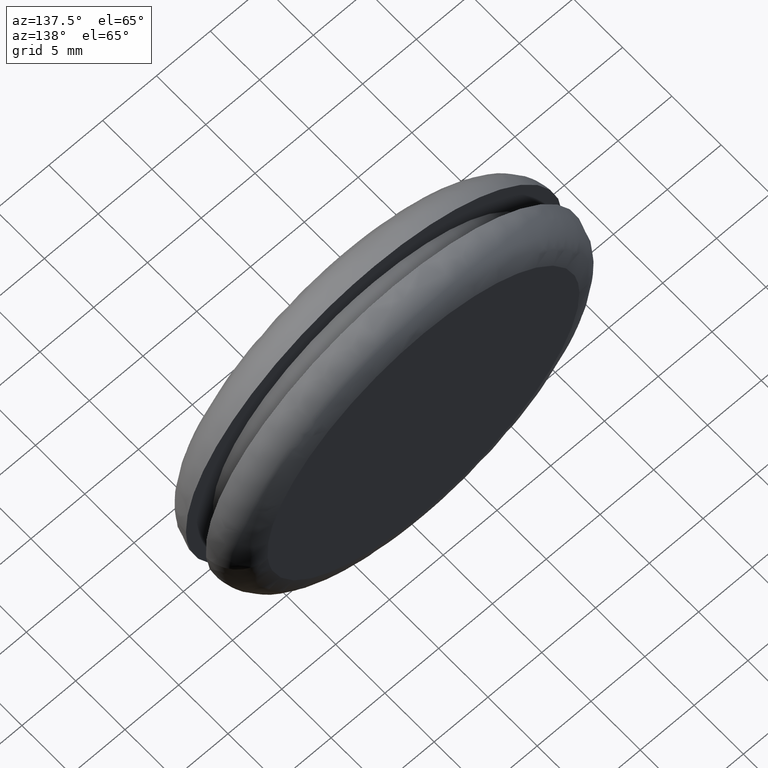
[diagram: clean part render]
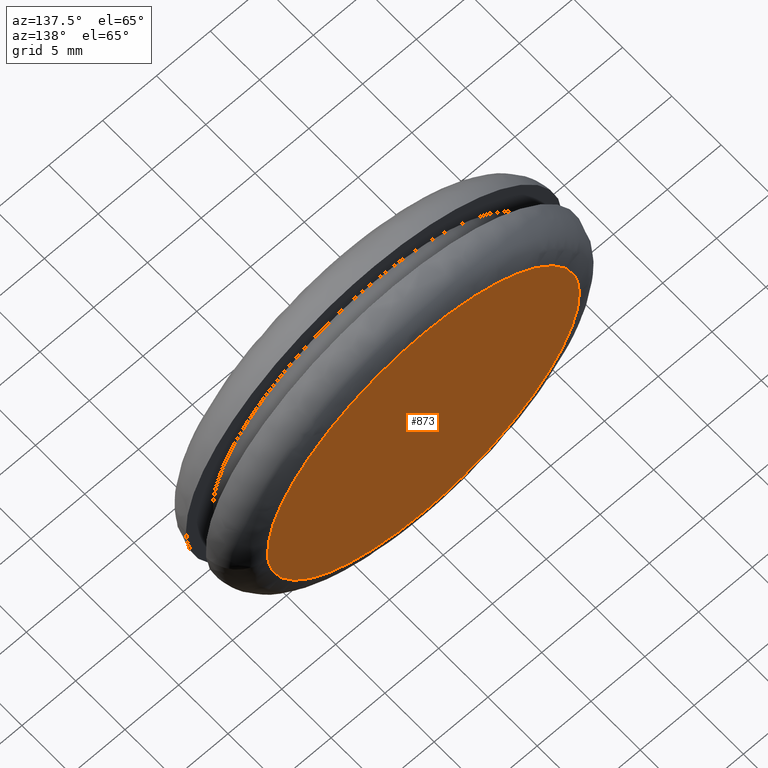
[diagram: same view with one face highlighted and labeled with its STEP entity id]
A machine part, auxiliary view. The second image highlights one B-rep face of the part: STEP entity #873.
In plain terms, the highlighted face is a freeform B-spline surface patch.
Its self-contained STEP definition (entity closure, byte-faithful):
#464=CARTESIAN_POINT('',(14.464702271190101,7.999999999999977,-1.011132147919218));
#465=VERTEX_POINT('',#464);
#479=CARTESIAN_POINT('',(0.0,8.0,14.500000000000000));
#480=VERTEX_POINT('',#479);
#481=CARTESIAN_POINT('',(14.464702271190097,7.999999999999977,-1.011132147919218));
#482=CARTESIAN_POINT('',(14.500000000000004,8.0,-0.506182180223362));
#483=CARTESIAN_POINT('',(14.500000000000000,8.0,-3.061516E-016));
#484=CARTESIAN_POINT('',(14.500000000000000,8.0,14.500000000000000));
#485=CARTESIAN_POINT('',(0.0,8.0,14.500000000000000));
#493=(BOUNDED_CURVE()B_SPLINE_CURVE(2,(#481,#482,#483,#484,#485),.UNSPECIFIED.,.F.,.U.)B_SPLINE_CURVE_WITH_KNOTS((3,2,3),(0.237833686534186,0.250000000000000,0.500000000000000),.UNSPECIFIED.)CURVE()GEOMETRIC_REPRESENTATION_ITEM()RATIONAL_B_SPLINE_CURVE((0.972879876385060,0.985746277151617,1.0,0.707106781186548,1.0))REPRESENTATION_ITEM(''));
#494=EDGE_CURVE('',#465,#480,#493,.T.);
#496=CARTESIAN_POINT('',(-14.498855141469869,7.999999999999977,0.182207578360299));
#497=VERTEX_POINT('',#496);
#498=CARTESIAN_POINT('',(0.0,8.0,14.500000000000000));
#499=CARTESIAN_POINT('',(-14.318922983566821,8.0,14.500000000000002));
#500=CARTESIAN_POINT('',(-14.498855141469868,7.999999999999977,0.182207578360299));
#508=(BOUNDED_CURVE()B_SPLINE_CURVE(2,(#498,#499,#500),.UNSPECIFIED.,.F.,.U.)B_SPLINE_CURVE_WITH_KNOTS((3,3),(0.500000000000000,0.747784295920632),.UNSPECIFIED.)CURVE()GEOMETRIC_REPRESENTATION_ITEM()RATIONAL_B_SPLINE_CURVE((1.0,0.709702639985524,0.994854295641490))REPRESENTATION_ITEM(''));
#509=EDGE_CURVE('',#480,#497,#508,.T.);
#596=CARTESIAN_POINT('',(0.0,8.0,-14.500000000000000));
#597=VERTEX_POINT('',#596);
#598=CARTESIAN_POINT('',(-14.498855141469871,7.999999999999977,0.182207578360299));
#599=CARTESIAN_POINT('',(-14.499999999999998,8.0,0.091107385927624));
#600=CARTESIAN_POINT('',(-14.500000000000000,8.0,-3.061516E-016));
#601=CARTESIAN_POINT('',(-14.500000000000000,8.0,-14.500000000000000));
#602=CARTESIAN_POINT('',(0.0,8.0,-14.500000000000000));
#610=(BOUNDED_CURVE()B_SPLINE_CURVE(2,(#598,#599,#600,#601,#602),.UNSPECIFIED.,.F.,.U.)B_SPLINE_CURVE_WITH_KNOTS((3,2,3),(0.747784295920631,0.750000000000000,1.0),.UNSPECIFIED.)CURVE()GEOMETRIC_REPRESENTATION_ITEM()RATIONAL_B_SPLINE_CURVE((0.994854295641488,0.997404141201022,1.0,0.707106781186548,1.0))REPRESENTATION_ITEM(''));
#611=EDGE_CURVE('',#497,#597,#610,.T.);
#613=CARTESIAN_POINT('',(0.0,8.0,-14.500000000000000));
#614=CARTESIAN_POINT('',(13.521784285291204,8.000000000000002,-14.500000000000007));
#615=CARTESIAN_POINT('',(14.464702271190101,7.999999999999977,-1.011132147919218));
#623=(BOUNDED_CURVE()B_SPLINE_CURVE(2,(#613,#614,#615),.UNSPECIFIED.,.F.,.U.)B_SPLINE_CURVE_WITH_KNOTS((3,3),(0.0,0.237833686534186),.UNSPECIFIED.)CURVE()GEOMETRIC_REPRESENTATION_ITEM()RATIONAL_B_SPLINE_CURVE((1.0,0.721360504034931,0.972879876385060))REPRESENTATION_ITEM(''));
#624=EDGE_CURVE('',#597,#465,#623,.T.);
#862=CARTESIAN_POINT('',(-15.947265820007219,8.0,15.948549943792370));
#863=CARTESIAN_POINT('',(-15.947265820007219,8.0,-15.948550721632991));
#864=CARTESIAN_POINT('',(15.946756803735870,8.0,15.948549943792370));
#865=CARTESIAN_POINT('',(15.946756803735870,8.0,-15.948550721632991));
#866=B_SPLINE_SURFACE_WITH_KNOTS('',1,1,((#862,#864),(#863,#865)),.UNSPECIFIED.,.F.,.F.,.U.,(2,2),(2,2),(0.0,31.897100665425359),(0.0,31.894022623743091),.UNSPECIFIED.);
#867=ORIENTED_EDGE('',*,*,#611,.F.);
#868=ORIENTED_EDGE('',*,*,#509,.F.);
#869=ORIENTED_EDGE('',*,*,#494,.F.);
#870=ORIENTED_EDGE('',*,*,#624,.F.);
#871=EDGE_LOOP('',(#867,#868,#869,#870));
#872=FACE_OUTER_BOUND('',#871,.T.);
#873=ADVANCED_FACE('',(#872),#866,.F.);